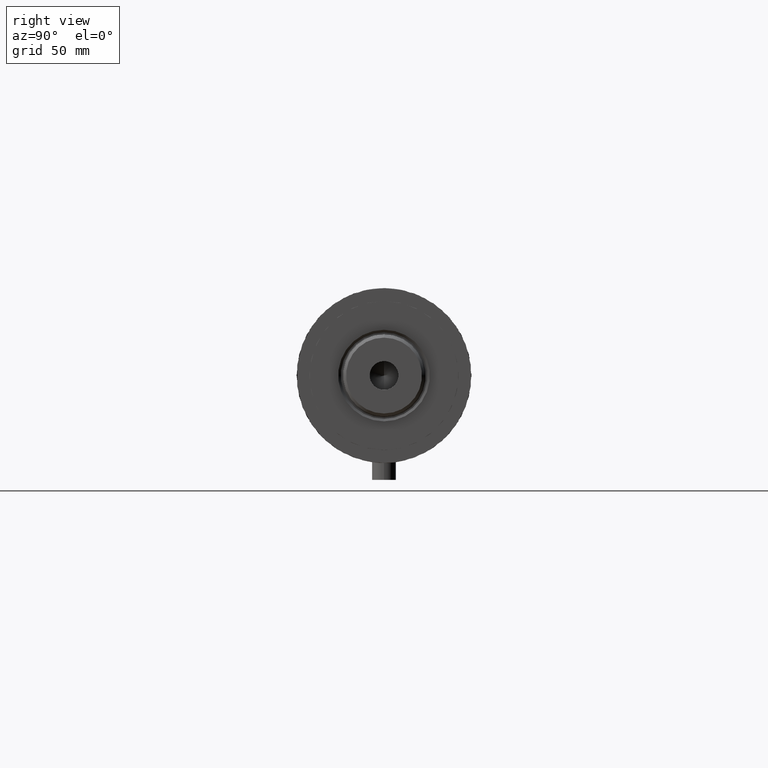
[diagram: clean part render]
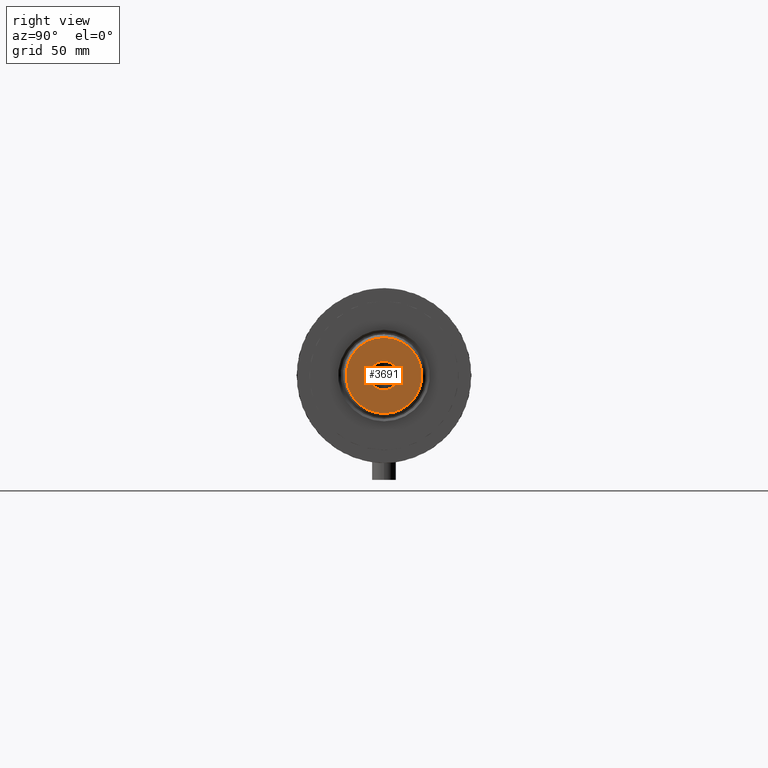
[diagram: same view with one face highlighted and labeled with its STEP entity id]
A machine part, right view. The second image highlights one B-rep face of the part: STEP entity #3691.
In plain terms, the highlighted planar face has unit normal (1, 0, -0).
Its self-contained STEP definition (entity closure, byte-faithful):
#100 = CARTESIAN_POINT ( 'NONE',  ( 0.000000000000000000, 0.000000000000000000, 303.3000000000000114 ) ) ;
#211 = VERTEX_POINT ( 'NONE', #3646 ) ;
#253 = CARTESIAN_POINT ( 'NONE',  ( 0.000000000000000000, 0.000000000000000000, 303.3000000000000114 ) ) ;
#295 = DIRECTION ( 'NONE',  ( 0.000000000000000000, 0.000000000000000000, 1.000000000000000000 ) ) ;
#314 = CARTESIAN_POINT ( 'NONE',  ( -19.09999999999997655, 0.000000000000000000, 303.3000000000000114 ) ) ;
#344 = CIRCLE ( 'NONE', #632, 7.249999999999999112 ) ;
#453 = EDGE_CURVE ( 'NONE', #1397, #514, #3931, .T. ) ;
#514 = VERTEX_POINT ( 'NONE', #314 ) ;
#588 = DIRECTION ( 'NONE',  ( 1.000000000000000000, 0.000000000000000000, -0.000000000000000000 ) ) ;
#608 = EDGE_CURVE ( 'NONE', #514, #1397, #1213, .T. ) ;
#632 = AXIS2_PLACEMENT_3D ( 'NONE', #1698, #1296, #3024 ) ;
#793 = CARTESIAN_POINT ( 'NONE',  ( 19.09999999999997655, 2.424800662311758221E-15, 303.3000000000000114 ) ) ;
#1030 = VERTEX_POINT ( 'NONE', #4263 ) ;
#1140 = AXIS2_PLACEMENT_3D ( 'NONE', #2827, #4313, #1714 ) ;
#1213 = CIRCLE ( 'NONE', #2688, 19.09999999999997655 ) ;
#1250 = EDGE_LOOP ( 'NONE', ( #1861, #2064 ) ) ;
#1291 = EDGE_CURVE ( 'NONE', #211, #1030, #1937, .T. ) ;
#1296 = DIRECTION ( 'NONE',  ( -0.000000000000000000, -0.000000000000000000, 1.000000000000000000 ) ) ;
#1344 = EDGE_LOOP ( 'NONE', ( #1879, #4354 ) ) ;
#1397 = VERTEX_POINT ( 'NONE', #793 ) ;
#1698 = CARTESIAN_POINT ( 'NONE',  ( 0.000000000000000000, 0.000000000000000000, 303.3000000000000114 ) ) ;
#1705 = PLANE ( 'NONE',  #1954 ) ;
#1714 = DIRECTION ( 'NONE',  ( 1.000000000000000000, 0.000000000000000000, 0.000000000000000000 ) ) ;
#1861 = ORIENTED_EDGE ( 'NONE', *, *, #1291, .F. ) ;
#1879 = ORIENTED_EDGE ( 'NONE', *, *, #608, .T. ) ;
#1937 = CIRCLE ( 'NONE', #1140, 7.249999999999999112 ) ;
#1954 = AXIS2_PLACEMENT_3D ( 'NONE', #3798, #2334, #588 ) ;
#2064 = ORIENTED_EDGE ( 'NONE', *, *, #4014, .F. ) ;
#2334 = DIRECTION ( 'NONE',  ( 0.000000000000000000, 0.000000000000000000, 1.000000000000000000 ) ) ;
#2373 = FACE_BOUND ( 'NONE', #1250, .T. ) ;
#2688 = AXIS2_PLACEMENT_3D ( 'NONE', #100, #4343, #3998 ) ;
#2827 = CARTESIAN_POINT ( 'NONE',  ( 0.000000000000000000, 0.000000000000000000, 303.3000000000000114 ) ) ;
#3024 = DIRECTION ( 'NONE',  ( 1.000000000000000000, 0.000000000000000000, 0.000000000000000000 ) ) ;
#3124 = DIRECTION ( 'NONE',  ( 1.000000000000000000, 0.000000000000000000, 0.000000000000000000 ) ) ;
#3191 = AXIS2_PLACEMENT_3D ( 'NONE', #253, #295, #3124 ) ;
#3646 = CARTESIAN_POINT ( 'NONE',  ( 7.249999999999999112, 0.000000000000000000, 303.3000000000000114 ) ) ;
#3691 = ADVANCED_FACE ( 'NONE', ( #3692, #2373 ), #1705, .T. ) ;
#3692 = FACE_OUTER_BOUND ( 'NONE', #1344, .T. ) ;
#3798 = CARTESIAN_POINT ( 'NONE',  ( 0.000000000000000000, 0.000000000000000000, 303.3000000000000114 ) ) ;
#3931 = CIRCLE ( 'NONE', #3191, 19.09999999999997655 ) ;
#3998 = DIRECTION ( 'NONE',  ( 1.000000000000000000, 0.000000000000000000, 0.000000000000000000 ) ) ;
#4014 = EDGE_CURVE ( 'NONE', #1030, #211, #344, .T. ) ;
#4263 = CARTESIAN_POINT ( 'NONE',  ( -7.249999999999999112, 8.878689293818310074E-16, 303.3000000000000114 ) ) ;
#4313 = DIRECTION ( 'NONE',  ( -0.000000000000000000, -0.000000000000000000, 1.000000000000000000 ) ) ;
#4343 = DIRECTION ( 'NONE',  ( 0.000000000000000000, 0.000000000000000000, 1.000000000000000000 ) ) ;
#4354 = ORIENTED_EDGE ( 'NONE', *, *, #453, .T. ) ;